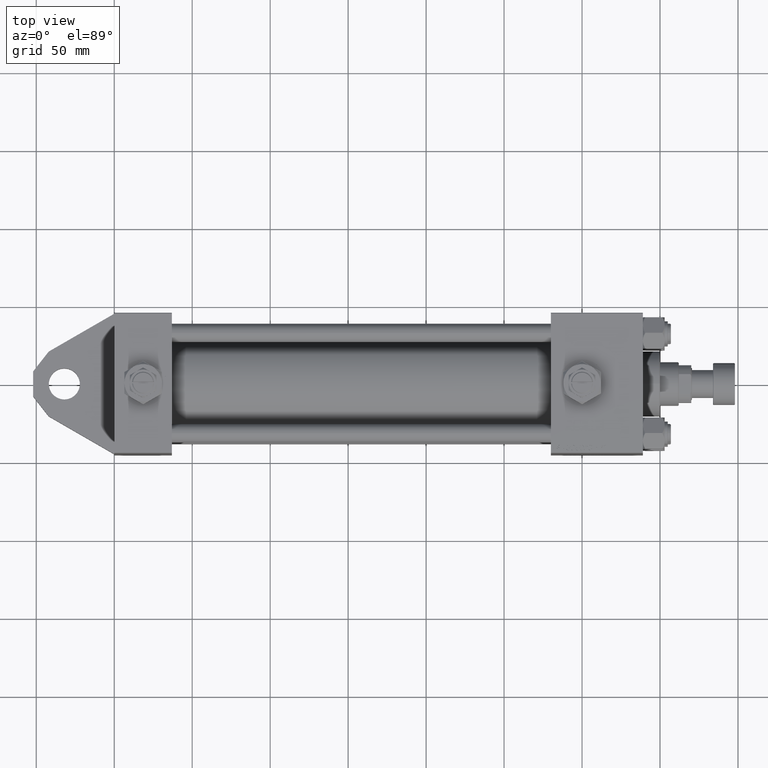
[diagram: clean part render]
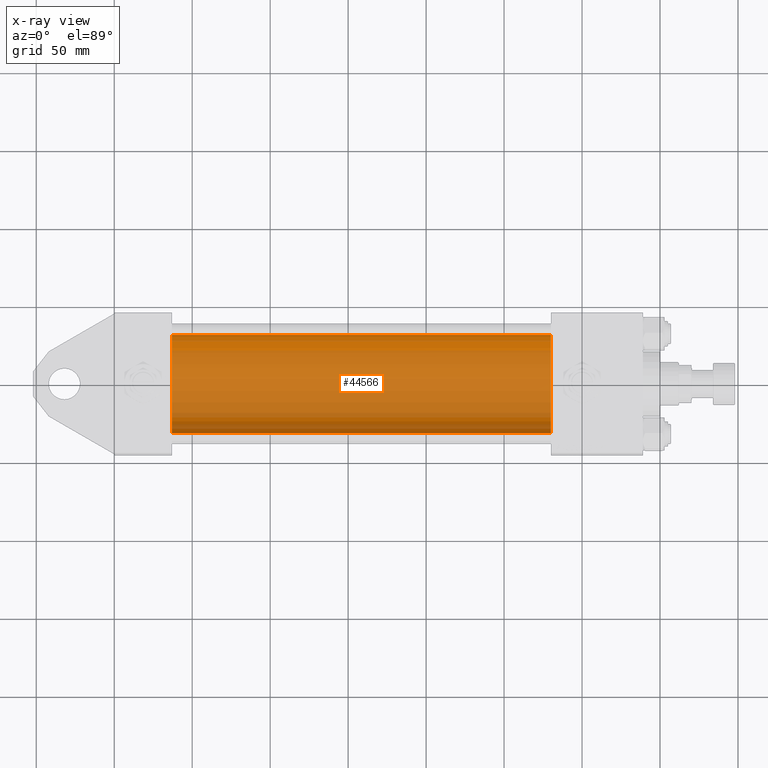
[diagram: x-ray — body ghosted, one internal face saturated and labeled with its STEP entity id]
A machine part, top view, then the same camera in x-ray: the body is ghosted and one INTERNAL B-rep face — a face not visible from any outside direction — is saturated and labeled: STEP entity #44566.
In plain terms, the highlighted cylindrical surface (partial cylindrical patch) has radius 31.5 mm, axis along (-1, -0, 0).
Its self-contained STEP definition (entity closure, byte-faithful):
#776 = AXIS2_PLACEMENT_3D ( 'NONE', #22823, #37814, #44947 ) ;
#891 = ORIENTED_EDGE ( 'NONE', *, *, #14061, .F. ) ;
#2743 = CIRCLE ( 'NONE', #13717, 31.50000000000000000 ) ;
#5396 = CARTESIAN_POINT ( 'NONE',  ( 279.9999999999999432, 1.255552203348951850E-15, -31.50000000000000000 ) ) ;
#5651 = CARTESIAN_POINT ( 'NONE',  ( 37.00000000000000000, 1.255552203348951850E-15, -31.50000000000000000 ) ) ;
#5921 = EDGE_CURVE ( 'NONE', #25668, #27475, #39063, .T. ) ;
#6494 = VECTOR ( 'NONE', #20374, 1000.000000000000000 ) ;
#10403 = CYLINDRICAL_SURFACE ( 'NONE', #19788, 31.50000000000000000 ) ;
#13649 = VERTEX_POINT ( 'NONE', #19665 ) ;
#13698 = DIRECTION ( 'NONE',  ( 0.000000000000000000, 0.000000000000000000, -1.000000000000000000 ) ) ;
#13717 = AXIS2_PLACEMENT_3D ( 'NONE', #39985, #32608, #13698 ) ;
#14061 = EDGE_CURVE ( 'NONE', #19018, #27475, #2743, .T. ) ;
#14183 = VECTOR ( 'NONE', #38574, 1000.000000000000000 ) ;
#17292 = FACE_OUTER_BOUND ( 'NONE', #24886, .T. ) ;
#19018 = VERTEX_POINT ( 'NONE', #30288 ) ;
#19665 = CARTESIAN_POINT ( 'NONE',  ( 279.9999999999999432, -2.602085213965210642E-15, 31.50000000000000000 ) ) ;
#19788 = AXIS2_PLACEMENT_3D ( 'NONE', #21695, #32287, #25393 ) ;
#20372 = CARTESIAN_POINT ( 'NONE',  ( 279.9999999999999432, -2.602085213965210642E-15, 31.50000000000000000 ) ) ;
#20374 = DIRECTION ( 'NONE',  ( -1.000000000000000000, -0.000000000000000000, -0.000000000000000000 ) ) ;
#21695 = CARTESIAN_POINT ( 'NONE',  ( 279.9999999999999432, -2.602085213965210642E-15, 0.000000000000000000 ) ) ;
#22823 = CARTESIAN_POINT ( 'NONE',  ( 279.9999999999999432, -2.602085213965210642E-15, 0.000000000000000000 ) ) ;
#23278 = CARTESIAN_POINT ( 'NONE',  ( 279.9999999999999432, 1.255552203348951850E-15, -31.50000000000000000 ) ) ;
#24522 = ORIENTED_EDGE ( 'NONE', *, *, #5921, .T. ) ;
#24886 = EDGE_LOOP ( 'NONE', ( #46031, #24522, #891, #27667 ) ) ;
#25393 = DIRECTION ( 'NONE',  ( 0.000000000000000000, 0.000000000000000000, 1.000000000000000000 ) ) ;
#25668 = VERTEX_POINT ( 'NONE', #23278 ) ;
#27475 = VERTEX_POINT ( 'NONE', #5651 ) ;
#27667 = ORIENTED_EDGE ( 'NONE', *, *, #41521, .F. ) ;
#29027 = CIRCLE ( 'NONE', #776, 31.50000000000000000 ) ;
#30288 = CARTESIAN_POINT ( 'NONE',  ( 37.00000000000000000, -2.602085213965210642E-15, 31.50000000000000000 ) ) ;
#32287 = DIRECTION ( 'NONE',  ( -1.000000000000000000, -0.000000000000000000, -0.000000000000000000 ) ) ;
#32608 = DIRECTION ( 'NONE',  ( 1.000000000000000000, 0.000000000000000000, 0.000000000000000000 ) ) ;
#37814 = DIRECTION ( 'NONE',  ( 1.000000000000000000, 0.000000000000000000, 0.000000000000000000 ) ) ;
#38574 = DIRECTION ( 'NONE',  ( -1.000000000000000000, -0.000000000000000000, -0.000000000000000000 ) ) ;
#39063 = LINE ( 'NONE', #5396, #6494 ) ;
#39149 = EDGE_CURVE ( 'NONE', #13649, #25668, #29027, .T. ) ;
#39985 = CARTESIAN_POINT ( 'NONE',  ( 37.00000000000000000, -2.602085213965210642E-15, 0.000000000000000000 ) ) ;
#41521 = EDGE_CURVE ( 'NONE', #13649, #19018, #42739, .T. ) ;
#42739 = LINE ( 'NONE', #20372, #14183 ) ;
#44566 = ADVANCED_FACE ( 'NONE', ( #17292 ), #10403, .F. ) ;
#44947 = DIRECTION ( 'NONE',  ( 0.000000000000000000, 0.000000000000000000, -1.000000000000000000 ) ) ;
#46031 = ORIENTED_EDGE ( 'NONE', *, *, #39149, .T. ) ;